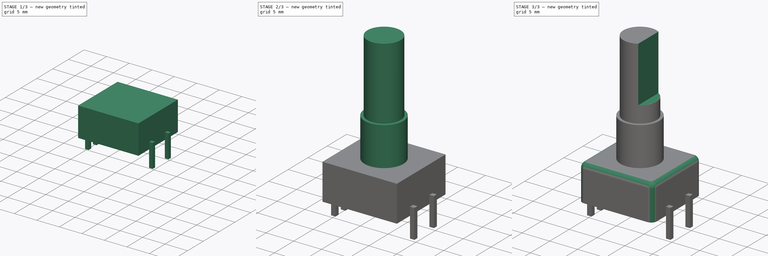
[diagram: build sequence overview — one tinted view per stage of 3, left to right]
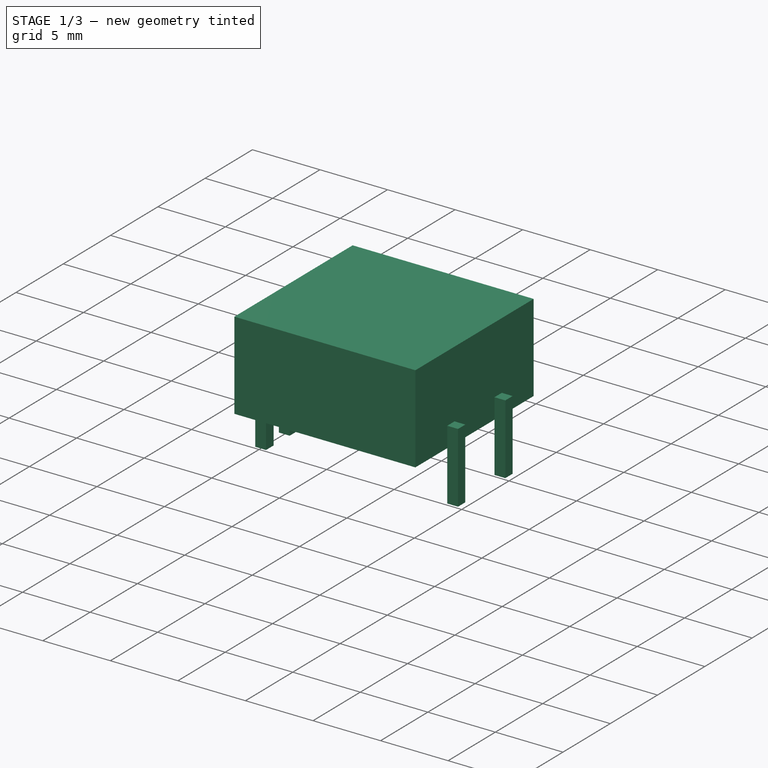
[diagram: stage 1 of 3 — iso view after this stage's code; geometry added in this stage tinted green]
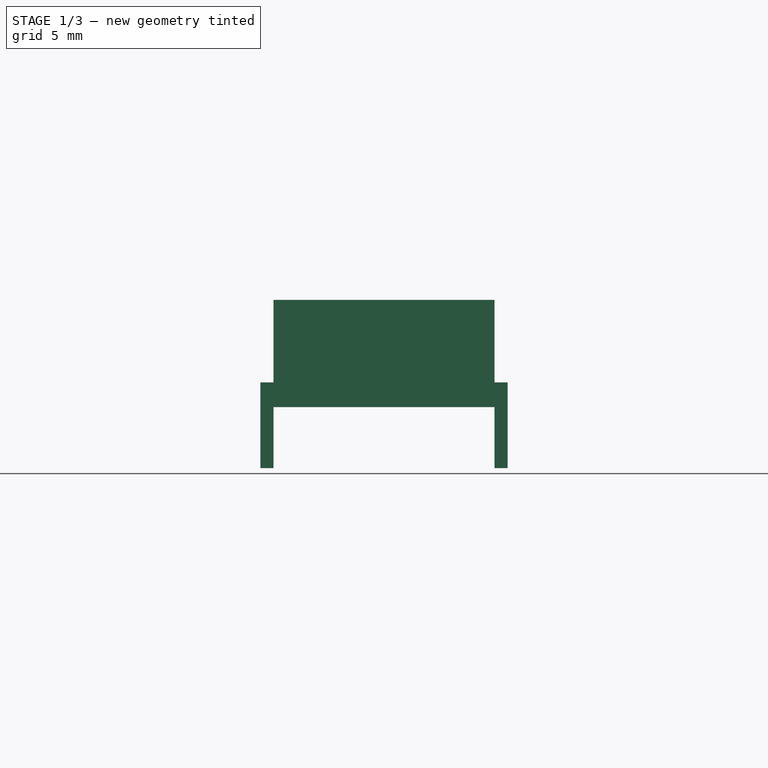
[diagram: stage 1 of 3 — front view after this stage's code; geometry added in this stage tinted green]
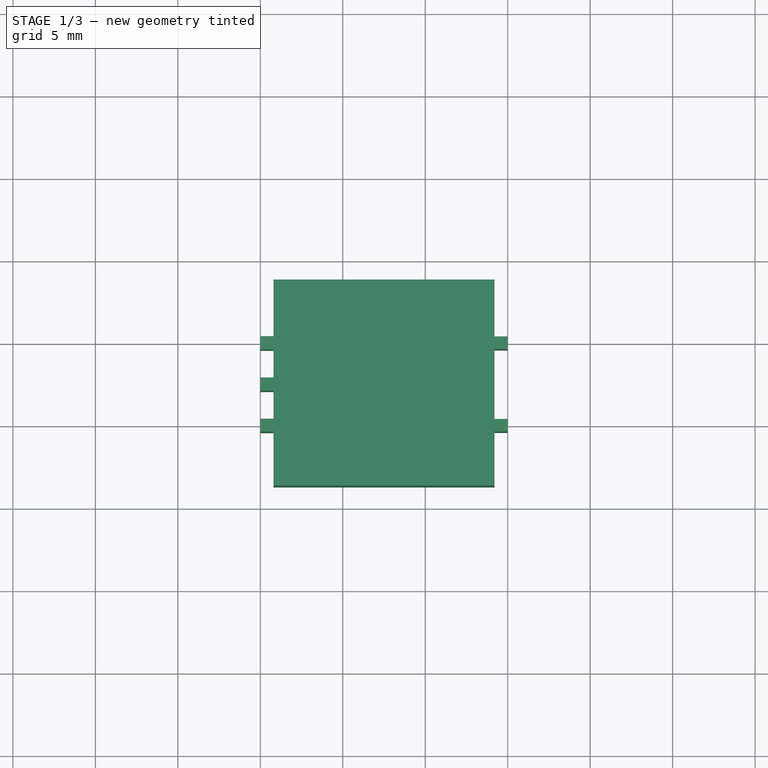
[diagram: stage 1 of 3 — top view after this stage's code; geometry added in this stage tinted green]
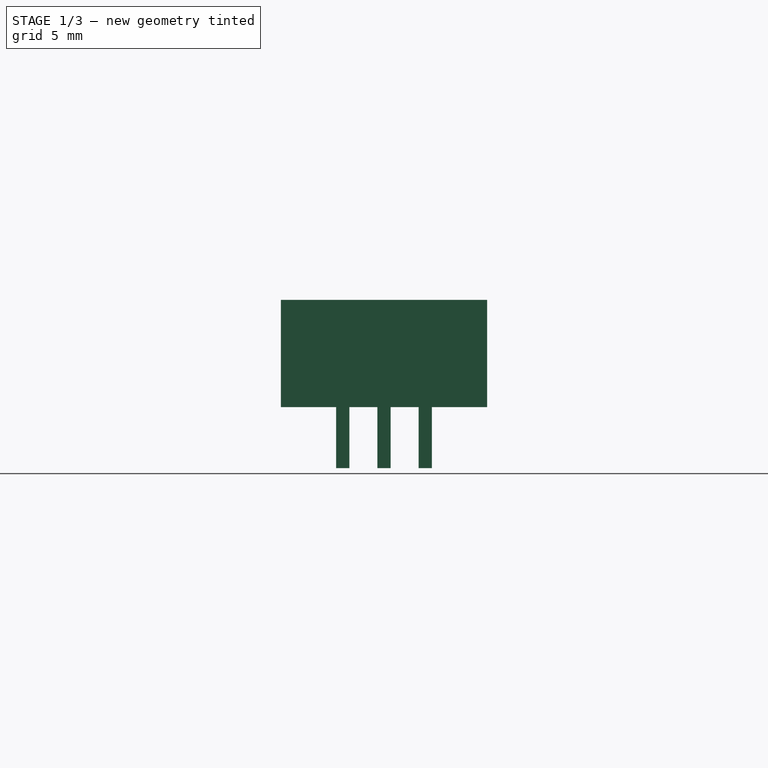
[diagram: stage 1 of 3 — right view after this stage's code; geometry added in this stage tinted green]
FCSTD DOCUMENT  (FreeCAD 0.19R22756 (Git))
Label: PEC11R-4220K-S0024
License: All rights reserved
LicenseURL: http://en.wikipedia.org/wiki/All_rights_reserved
objects: Sketcher::SketchObject×5, PartDesign::Pad×4, PartDesign::Plane×1, PartDesign::Pocket×1, PartDesign::Fillet×1, PartDesign::Body×1, App::Part×1
note: 19 computed .brp shape members not serialized (recipe doc carries the construction recipe); baked Part::Feature solids carry a one-line shape summary decoded from their .brp

FEATURE [Sketcher::SketchObject] Sketch
  MapMode = 5
  Support = -> [XY_Plane001]
  sketch-geometry (6):
    g0: LineSegment StartX=0.8 StartY=3.75 StartZ=0 EndX=14.2 EndY=3.75 EndZ=0
    g1: LineSegment StartX=14.2 StartY=3.75 StartZ=0 EndX=14.2 EndY=-8.75 EndZ=0
    g2: LineSegment StartX=14.2 StartY=-8.75 StartZ=0 EndX=0.8 EndY=-8.75 EndZ=0
    g3: LineSegment StartX=0.8 StartY=-8.75 StartZ=0 EndX=0.8 EndY=3.75 EndZ=0
    g4: LineSegment [constr] StartX=7.5 StartY=3.75 StartZ=0 EndX=7.5 EndY=-8.75 EndZ=0
    g5: GeomPoint X=7.5 Y=-2.5 Z=0
  constraints (15):
    c: Coincident(g0,g1)
    c: Coincident(g1,g2)
    c: Coincident(g2,g3)
    c: Coincident(g3,g0)
    c: Horizontal(g0)
    c: Horizontal(g2)
    c: Vertical(g1)
    c: Vertical(g3)
    c: DistanceX(g0,g0) = 13.4
    c: DistanceY(g1,g1) = 12.5
    c: Symmetric(g0,g0,g4)
    c: Symmetric(g1,g2,g4)
    c: Symmetric(g4,g4,g5)
    c: DistanceX(g-1,g5) = 7.5
    c: DistanceY(g5,g-1) = 2.5
FEATURE [PartDesign::Pad] Pad
  Direction = (1,1,1)
  Length = 6.5
  Length2 = 100
  Profile = -> Sketch
  Type = 0
FEATURE [PartDesign::Plane] DatumPlane
  AttachmentOffset = pos=(0,0,-1.5) rot=(0,0,1;0rad)
  Length = 60
  MapMode = 5
  Placement = pos=(0,0,1.5) rot=(1,0,0;3.14159rad)
  ResizeMode = 0
  Support = -> [Pad]
  Width = 60
FEATURE [Sketcher::SketchObject] Sketch001
  ExternalGeometry = -> [Pad]
  MapMode = 5
  Placement = pos=(0,0,1.5) rot=(1,0,0;3.14159rad)
  Support = -> [DatumPlane]
  sketch-geometry (23):
    g0: LineSegment StartX=7e-16 StartY=5.4 StartZ=0 EndX=0.8 EndY=5.4 EndZ=0
    g1: LineSegment StartX=0.8 StartY=5.4 StartZ=0 EndX=0.8 EndY=4.6 EndZ=0
    g2: LineSegment StartX=0.8 StartY=4.6 StartZ=0 EndX=7e-16 EndY=4.6 EndZ=0
    g3: LineSegment StartX=7e-16 StartY=4.6 StartZ=0 EndX=7e-16 EndY=5.4 EndZ=0
    g4: LineSegment StartX=7e-16 StartY=2.1 StartZ=0 EndX=0.8 EndY=2.1 EndZ=0
    g5: LineSegment StartX=0.8 StartY=2.1 StartZ=0 EndX=0.8 EndY=2.9 EndZ=0
    g6: LineSegment StartX=0.8 StartY=2.9 StartZ=0 EndX=7e-16 EndY=2.9 EndZ=0
    g7: LineSegment StartX=7e-16 StartY=2.9 StartZ=0 EndX=7e-16 EndY=2.1 EndZ=0
    g8: LineSegment StartX=0.8 StartY=-0.4 StartZ=0 EndX=7e-16 EndY=-0.4 EndZ=0
    g9: LineSegment StartX=7e-16 StartY=-0.4 StartZ=0 EndX=7e-16 EndY=0.4 EndZ=0
    g10: LineSegment StartX=7e-16 StartY=0.4 StartZ=0 EndX=0.8 EndY=0.4 EndZ=0
    g11: LineSegment StartX=0.8 StartY=0.4 StartZ=0 EndX=0.8 EndY=-0.4 EndZ=0
    g12: LineSegment StartX=14.2 StartY=5.38494 StartZ=0 EndX=15 EndY=5.38494 EndZ=0
    g13: LineSegment StartX=15 StartY=5.38494 StartZ=0 EndX=15 EndY=4.61506 EndZ=0
    g14: LineSegment StartX=15 StartY=4.61506 StartZ=0 EndX=14.2 EndY=4.61506 EndZ=0
    g15: LineSegment StartX=14.2 StartY=4.61506 StartZ=0 EndX=14.2 EndY=5.38494 EndZ=0
    g16: LineSegment StartX=14.2 StartY=0.384945 StartZ=0 EndX=15 EndY=0.384945 EndZ=0
    g17: LineSegment StartX=15 StartY=0.384945 StartZ=0 EndX=15 EndY=-0.384945 EndZ=0
    g18: LineSegment StartX=15 StartY=-0.384945 StartZ=0 EndX=14.2 EndY=-0.384945 EndZ=0
    g19: LineSegment StartX=14.2 StartY=-0.384945 StartZ=0 EndX=14.2 EndY=0.384945 EndZ=0
    g20: GeomPoint X=14.2 Y=2.5 Z=0
    g21: LineSegment [constr] StartX=14.2 StartY=2.5 StartZ=0 EndX=15 EndY=0.384945 EndZ=0
    g22: LineSegment [constr] StartX=14.2 StartY=2.5 StartZ=0 EndX=15 EndY=4.61506 EndZ=0
  constraints (64):
    c: Coincident(g0,g1)
    c: Coincident(g1,g2)
    c: Coincident(g2,g3)
    c: Coincident(g3,g0)
    c: Horizontal(g0)
    c: Horizontal(g2)
    c: Vertical(g1)
    c: Vertical(g3)
    c: Coincident(g4,g5)
    c: Coincident(g5,g6)
    c: Coincident(g6,g7)
    c: Coincident(g7,g4)
    c: Horizontal(g4)
    c: Horizontal(g6)
    c: Vertical(g5)
    c: Vertical(g7)
    c: DistanceY(g3,g3) = 0.8
    c: Coincident(g8,g9)
    c: Coincident(g9,g10)
    c: Coincident(g10,g11)
    c: Coincident(g11,g8)
    c: Horizontal(g8)
    c: Horizontal(g10)
    c: Vertical(g9)
    c: Vertical(g11)
    c: PointOnObject(g9,g7)
    c: PointOnObject(g6,g3)
    c: Equal(g3,g7)
    c: Equal(g7,g9)
    c: DistanceY(g8,g4) = 2.5
    c: DistanceY(g4,g2) = 2.5
    c: DistanceY(g8,g-1) = 0.4
    c: DistanceX(g10,g10) = 0.8
    c: Vertical(g8,g-4)
    c: Vertical(g4,g1)
    c: Vertical(g10,g4)
    c: Coincident(g12,g13)
    c: Coincident(g13,g14)
    c: Coincident(g14,g15)
    c: Coincident(g15,g12)
    c: Horizontal(g12)
    c: Horizontal(g14)
    c: Vertical(g13)
    c: Vertical(g15)
    c: Coincident(g16,g17)
    c: Coincident(g17,g18)
    c: Coincident(g18,g19)
    c: Coincident(g19,g16)
    c: Horizontal(g16)
    c: Horizontal(g18)
    c: Vertical(g17)
    c: Vertical(g19)
    c: Vertical(g16,g12)
    c: Vertical(g12,g-3)
    c: Equal(g17,g13)
    c: Equal(g14,g18)
    c: Symmetric(g-3,g-3,g20)
    c: Coincident(g21,g20)
    c: Coincident(g21,g16)
    c: Coincident(g22,g20)
    c: Coincident(g22,g13)
    c: Equal(g22,g21)
    c: DistanceY(g16,g12) = 5
    c: Equal(g12,g0)
FEATURE [PartDesign::Pad] Pad001
  BaseFeature = -> Pad
  Direction = (1,1,1)
  Length = 5.2
  Length2 = 100
  Profile = -> Sketch001
  Type = 0
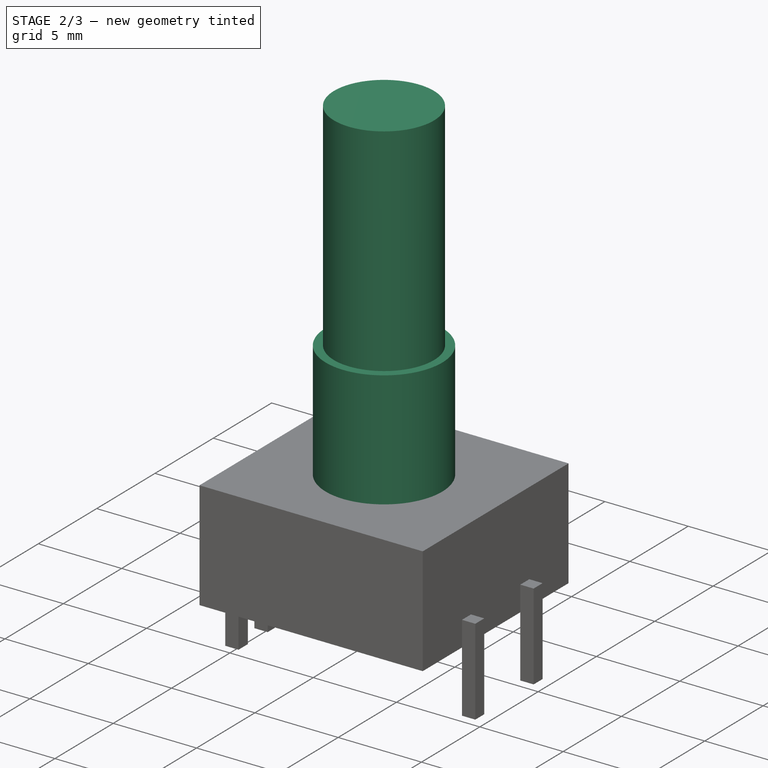
[diagram: stage 2 of 3 — iso view after this stage's code; geometry added in this stage tinted green]
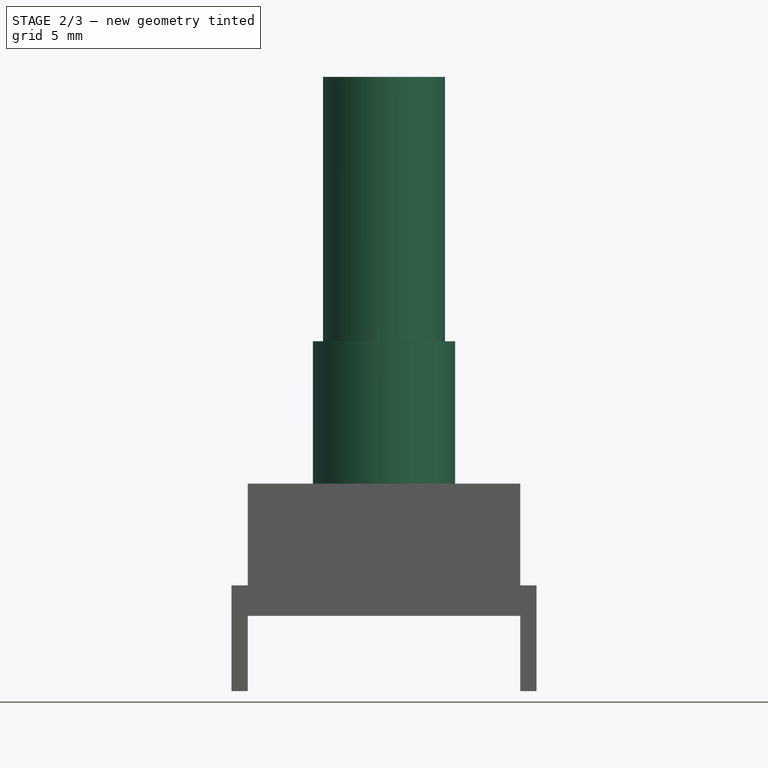
[diagram: stage 2 of 3 — front view after this stage's code; geometry added in this stage tinted green]
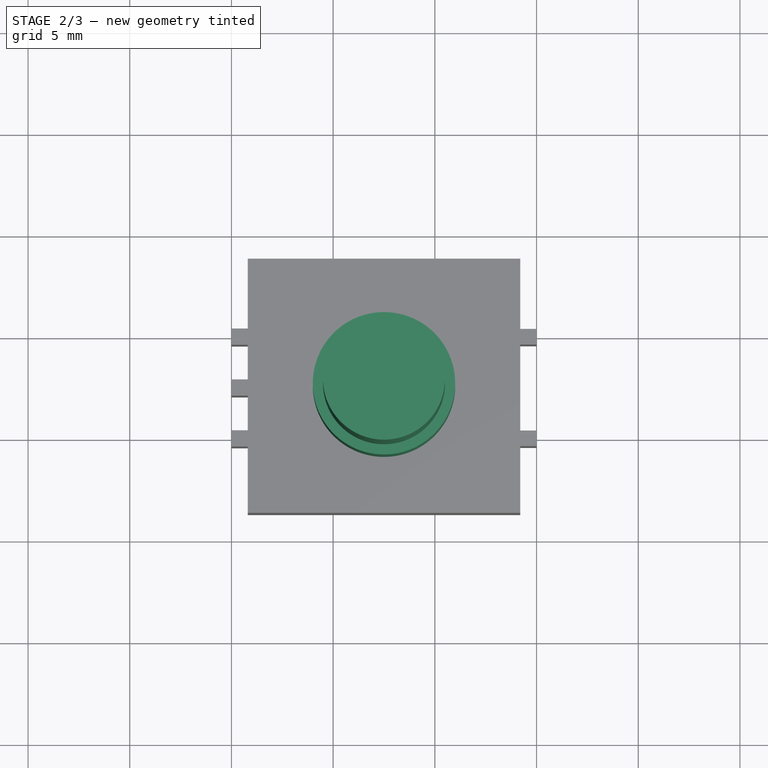
[diagram: stage 2 of 3 — top view after this stage's code; geometry added in this stage tinted green]
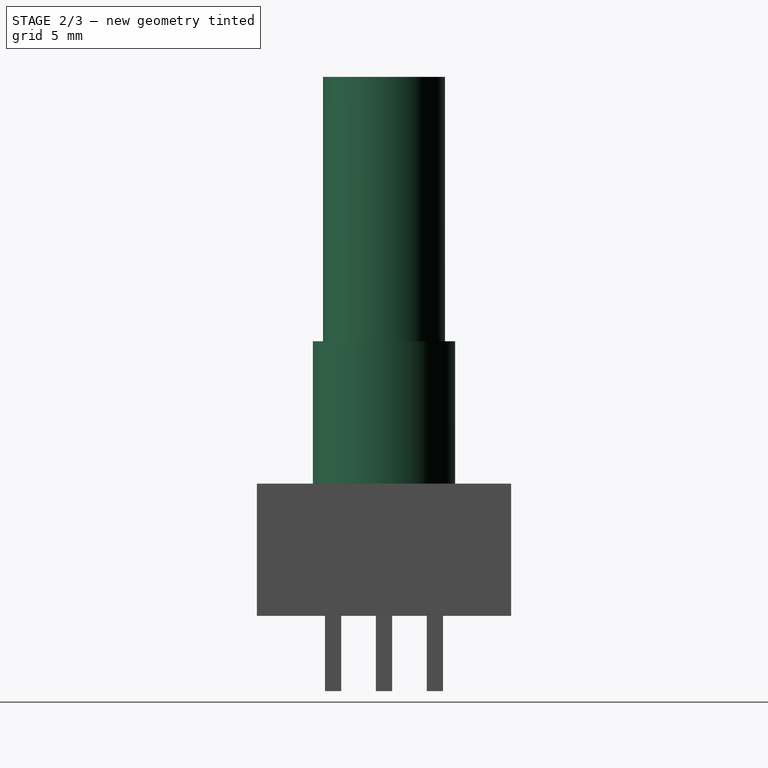
[diagram: stage 2 of 3 — right view after this stage's code; geometry added in this stage tinted green]
FEATURE [Sketcher::SketchObject] Sketch002
  ExternalGeometry = -> [Pad001]
  MapMode = 5
  Placement = pos=(0,0,6.5) rot=(0,0,1;0rad)
  Support = -> [Pad001]
  sketch-geometry (1):
    g0: Circle CenterX=7.5 CenterY=-2.5 CenterZ=0 NormalX=0 NormalY=0 NormalZ=1 AngleXU=0 Radius=3.5
  constraints (2):
    c: Symmetric(g-3,g-4,g0)
    c: Diameter(g0) = 7
FEATURE [PartDesign::Pad] Pad002
  BaseFeature = -> Pad001
  Direction = (1,1,1)
  Length = 7
  Length2 = 100
  Profile = -> Sketch002
  Type = 0
FEATURE [Sketcher::SketchObject] Sketch003
  ExternalGeometry = -> [Pad002]
  MapMode = 5
  Placement = pos=(0,0,13.5) rot=(0,0,1;0rad)
  Support = -> [Pad002]
  sketch-geometry (1):
    g0: Circle CenterX=7.5 CenterY=-2.5 CenterZ=0 NormalX=0 NormalY=0 NormalZ=1 AngleXU=0 Radius=3
  constraints (2):
    c: Coincident(g0,g-3)
    c: Diameter(g0) = 6
FEATURE [PartDesign::Pad] Pad003
  BaseFeature = -> Pad002
  Direction = (1,1,1)
  Length = 13
  Length2 = 100
  Profile = -> Sketch003
  Type = 0
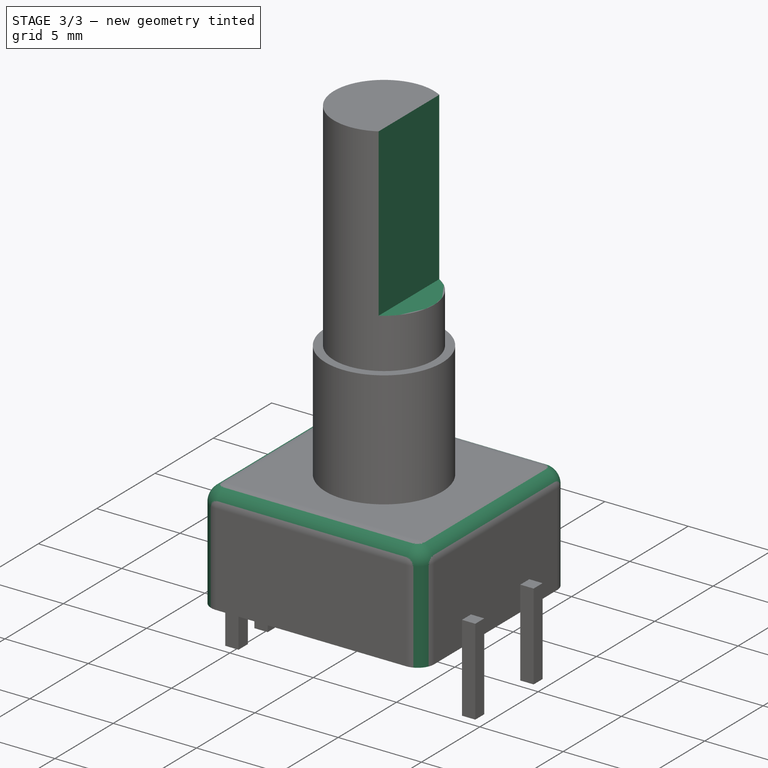
[diagram: stage 3 of 3 — iso view after this stage's code; geometry added in this stage tinted green]
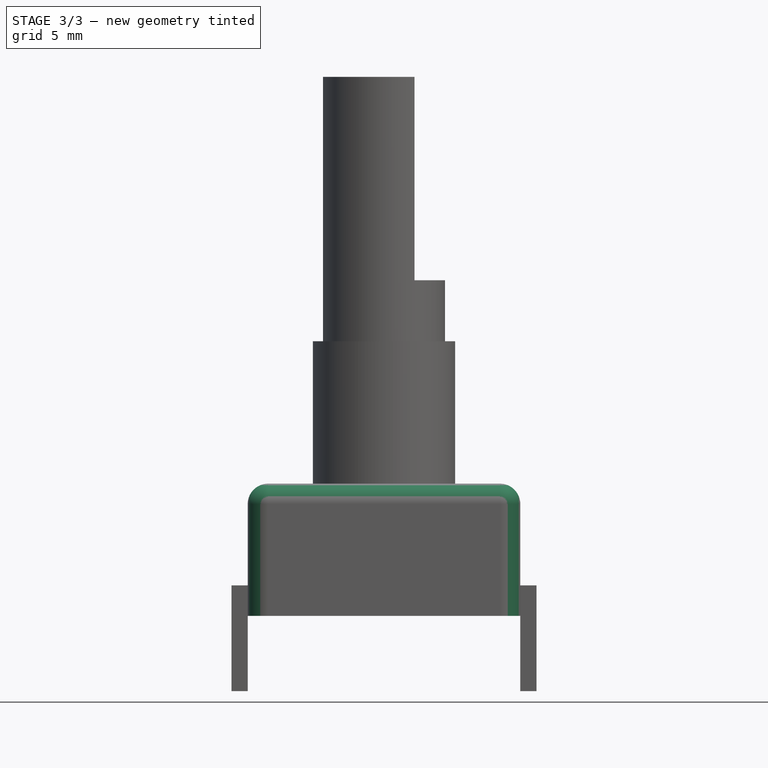
[diagram: stage 3 of 3 — front view after this stage's code; geometry added in this stage tinted green]
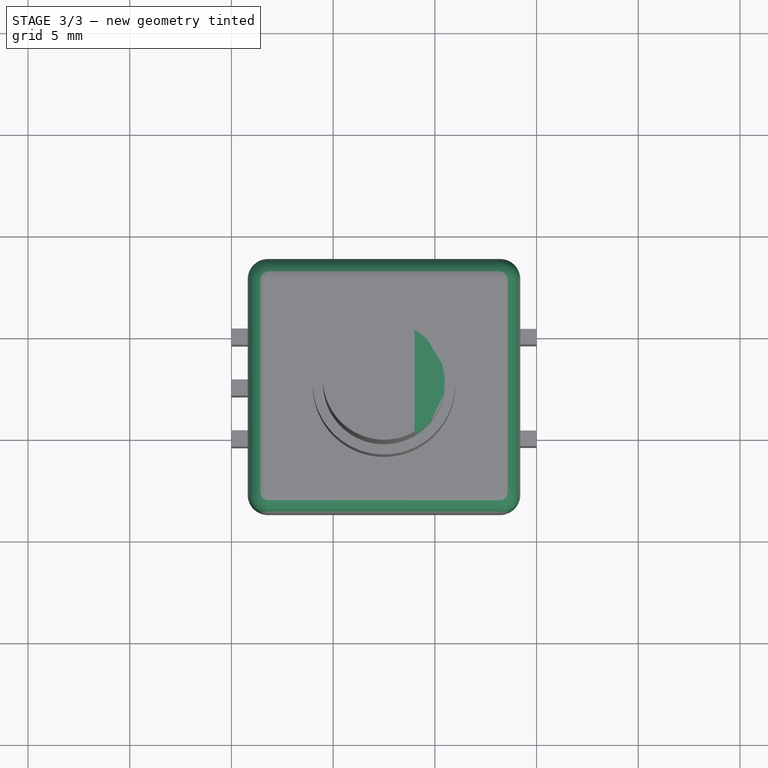
[diagram: stage 3 of 3 — top view after this stage's code; geometry added in this stage tinted green]
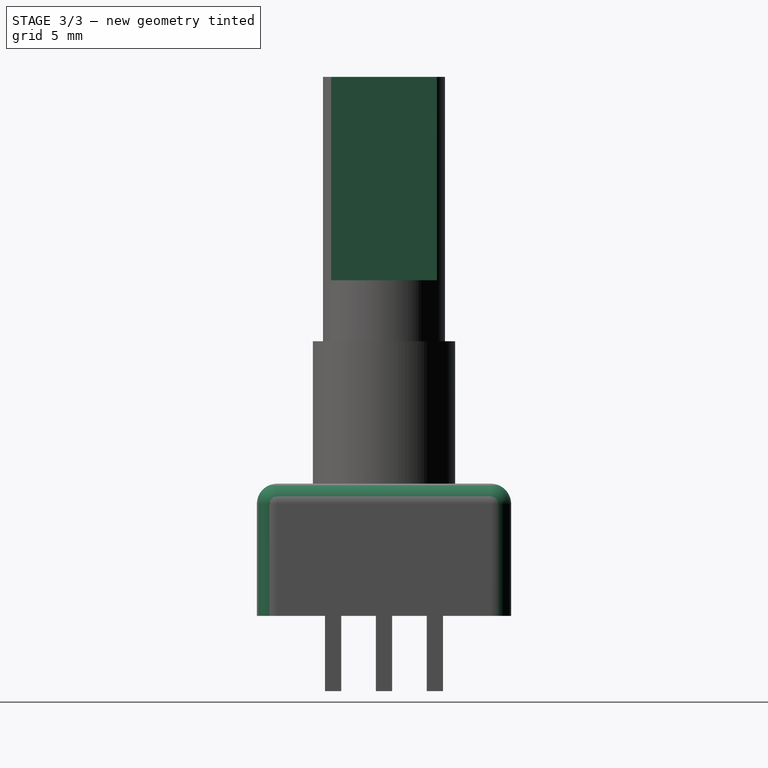
[diagram: stage 3 of 3 — right view after this stage's code; geometry added in this stage tinted green]
FEATURE [Sketcher::SketchObject] Sketch004
  ExternalGeometry = -> [Pad003]
  MapMode = 5
  Placement = pos=(0,0,26.5) rot=(0,0,1;0rad)
  Support = -> [Pad003]
  sketch-geometry (2):
    g0: LineSegment StartX=9 StartY=0.0980762 StartZ=0 EndX=9 EndY=-5.09808 EndZ=0
    g1: ArcOfCircle CenterX=7.5 CenterY=-2.5 CenterZ=0 NormalX=0 NormalY=0 NormalZ=1 AngleXU=0 Radius=3 StartAngle=5.23599 EndAngle=7.33038
  constraints (6):
    c: Vertical(g0)
    c: Coincident(g1,g-3)
    c: Coincident(g1,g0)
    c: Coincident(g1,g0)
    c: Diameter(g1) = 6
    c: DistanceX(g1,g0) = 1.5
FEATURE [PartDesign::Pocket] Pocket
  BaseFeature = -> Pad003
  Length = 10
  Length2 = 100
  Profile = -> Sketch004
  Type = 0
FEATURE [PartDesign::Fillet] Fillet
  Base = -> Pocket [Edge1,Edge4,Edge18,Edge30,Edge2,Edge19,Edge37,Edge29]
  BaseFeature = -> Pocket
  Radius = 1
  SupportTransform = false
FEATURE [PartDesign::Body] Pad001Body  label="PEC11R-4220K-S0024"
  Group = -> [Sketch,Pad,Sketch001,Pad001,Sketch002,Pad002,Sketch003,Pad003,Sketch004,Pocket,Fillet]
  Origin = -> Origin001
  Tip = -> Fillet
FEATURE [App::Part] Part
  Group = -> [Pad001Body]
  Origin = -> Origin
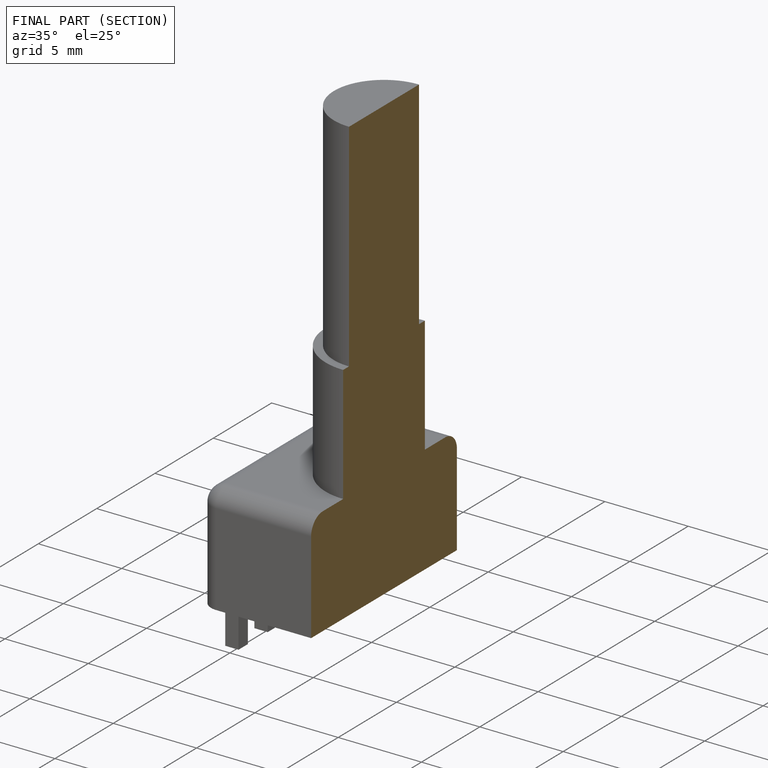
[diagram: finished part — half-section view (interior)]
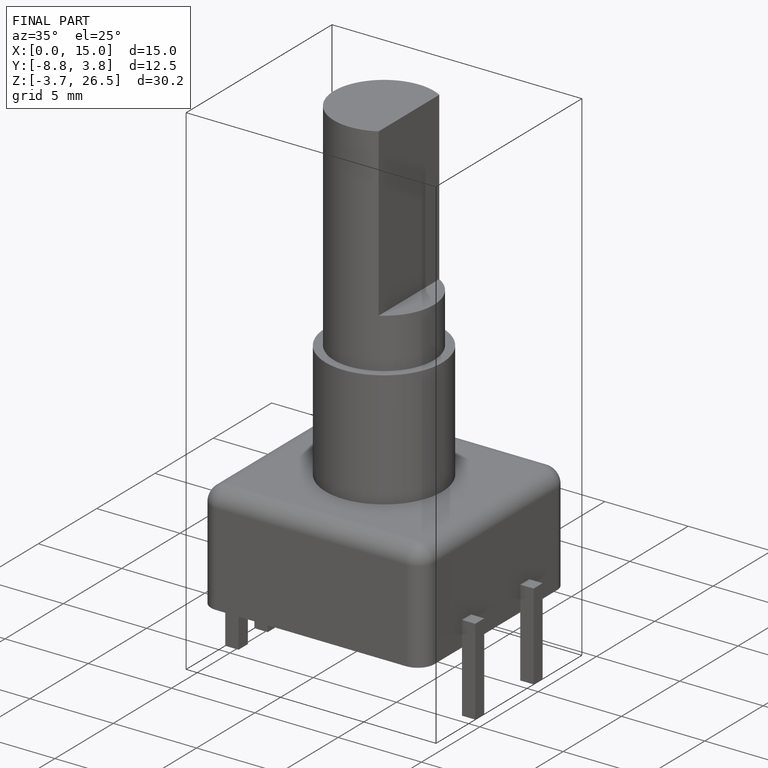
[diagram: finished part — iso view with bounding-box wireframe]
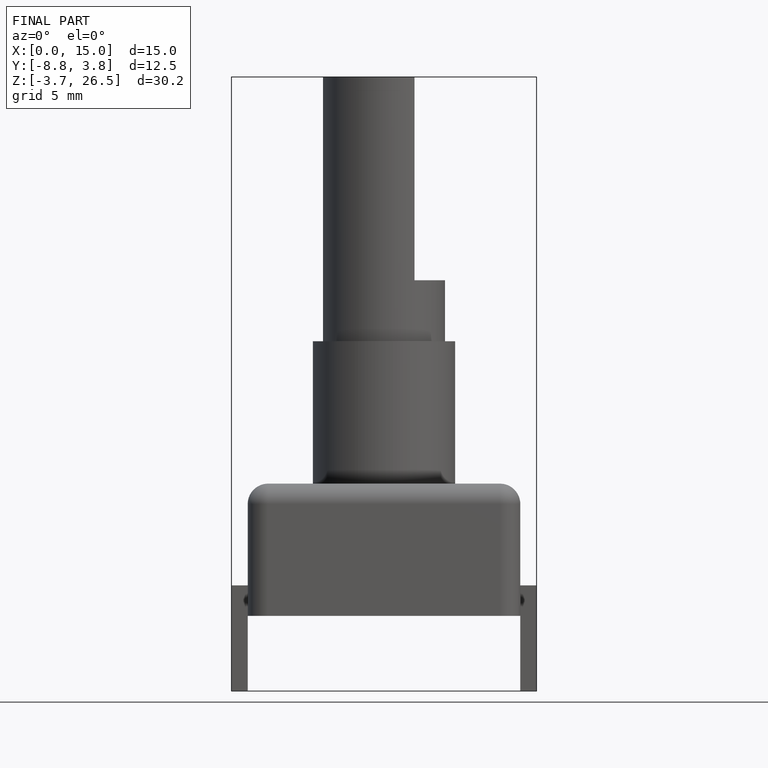
[diagram: finished part — front view with bounding-box wireframe]
